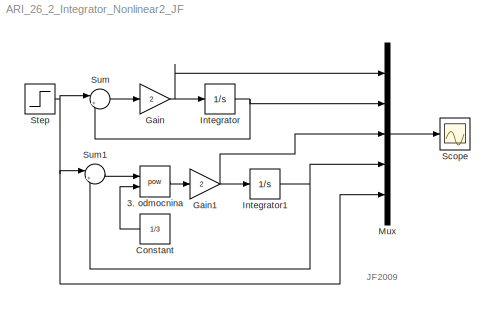
MODEL ARI_26_2_Integrator_Nonlinear2_JF
KIND model
BLOCK [Math] 3. odmocnina
  Operator = pow
  Ports = [2, 1]
  SID = 1
BLOCK [Constant] Constant
  SID = 2
  Value = 1/3
BLOCK [Gain] Gain
  Gain = 2
  OutDataTypeStr = Inherit: Inherit via internal rule
  ParamDataTypeStr = Inherit: Inherit via internal rule
  SID = 3
  SaturateOnIntegerOverflow = off
BLOCK [Gain] Gain1
  Gain = 2
  OutDataTypeStr = Inherit: Inherit via internal rule
  ParamDataTypeStr = Inherit: Inherit via internal rule
  SID = 4
  SaturateOnIntegerOverflow = off
BLOCK [Integrator] Integrator
  Ports = [1, 1]
  SID = 5
BLOCK [Integrator] Integrator1
  AbsoluteTolerance = 1e-9
  Ports = [1, 1]
  SID = 6
BLOCK [Mux] Mux
  DisplayOption = bar
  Inputs = 5
  Ports = [5, 1]
  SID = 7
BLOCK [Scope] Scope
  DataFormat = StructureWithTime
  Floating = off
  MaxDataPoints = 5000000
  NumInputPorts = 1
  Ports = [1]
  SID = 8
  SampleTime = 0
  TimeRange = 5
  YMax = 1
  YMin = 2.77556e-017
BLOCK [Step] Step
  SID = 9
  SampleTime = 0
BLOCK [Sum] Sum
  IconShape = round
  InputSameDT = off
  Inputs = |+-
  OutDataTypeStr = Inherit: Inherit via internal rule
  Ports = [2, 1]
  SID = 10
  SaturateOnIntegerOverflow = off
BLOCK [Sum] Sum1
  IconShape = round
  InputSameDT = off
  Inputs = |+-
  OutDataTypeStr = Inherit: Inherit via internal rule
  Ports = [2, 1]
  SID = 11
  SaturateOnIntegerOverflow = off
ANNOTATION (root): JF2009
LINE 3. odmocnina:1 -> Gain1:1
LINE Constant:1 -> 3. odmocnina:2
NET Gain1:1 -> Integrator1:1, Mux:3
NET Gain:1 -> Integrator:1, Mux:1
NET Integrator1:1 -> Mux:4, Sum1:2
NET Integrator:1 -> Mux:2, Sum:2
LINE Mux:1 -> Scope:1
NET Step:1 -> Mux:5, Sum1:1, Sum:1
LINE Sum1:1 -> 3. odmocnina:1
LINE Sum:1 -> Gain:1
note: NET lines group one-source signal fan-out (src -> all destinations, sorted); 1:1 wires keep LINE
